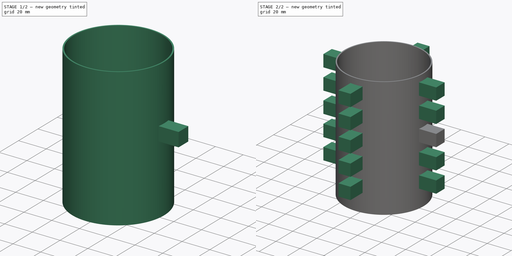
[diagram: build sequence overview — one tinted view per stage of 2, left to right]
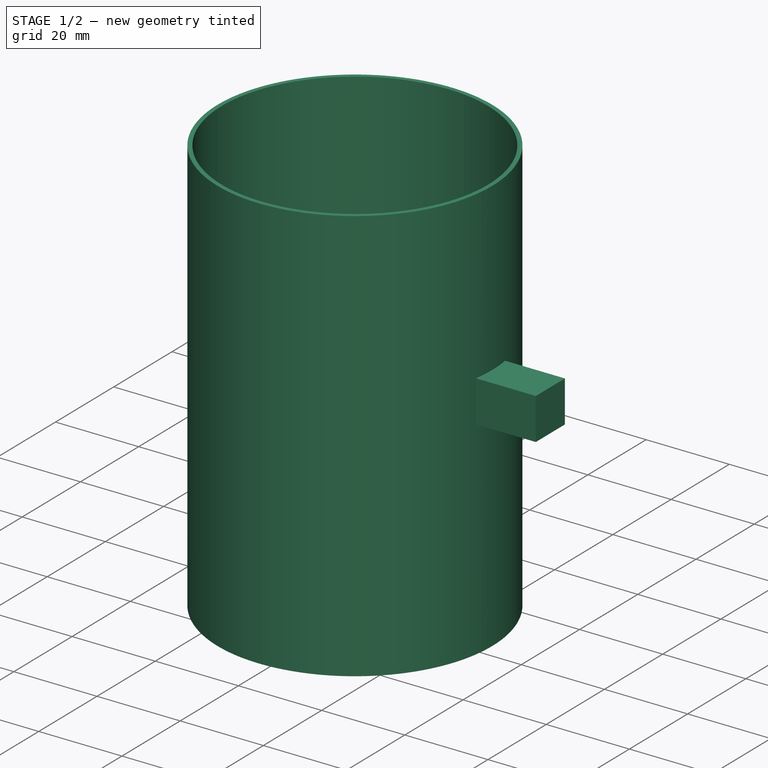
[diagram: stage 1 of 2 — iso view after this stage's code; geometry added in this stage tinted green]
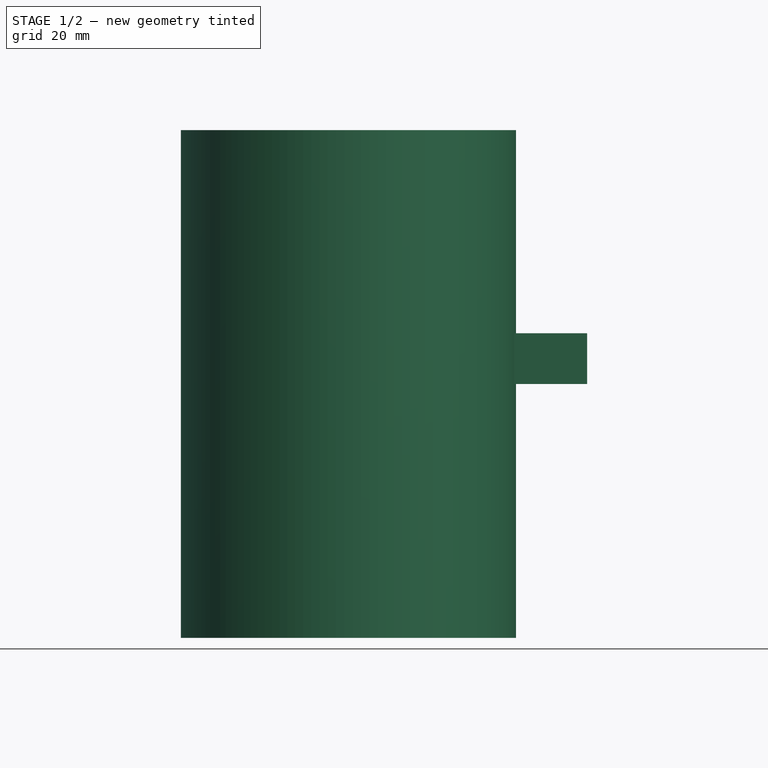
[diagram: stage 1 of 2 — front view after this stage's code; geometry added in this stage tinted green]
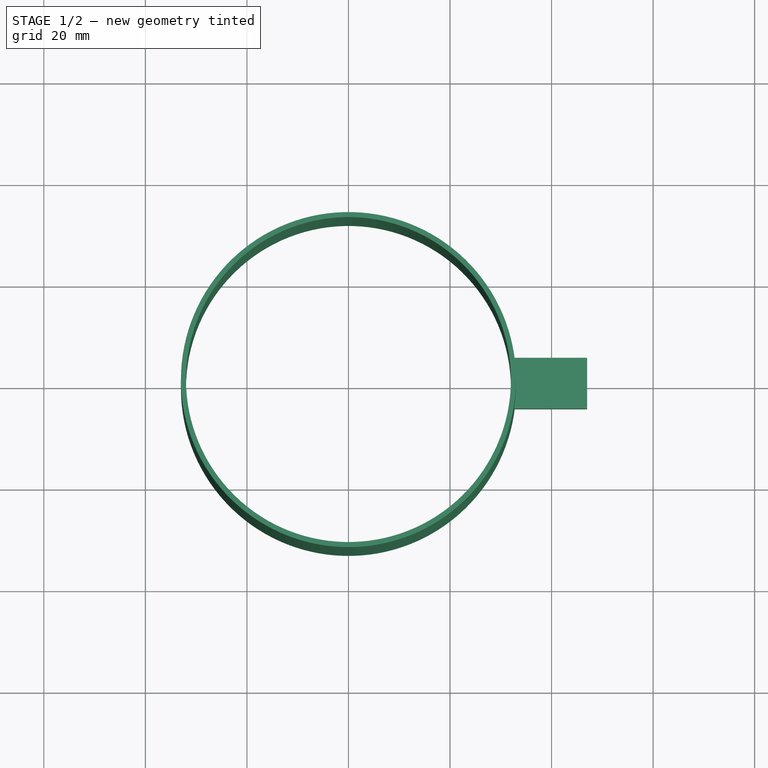
[diagram: stage 1 of 2 — top view after this stage's code; geometry added in this stage tinted green]
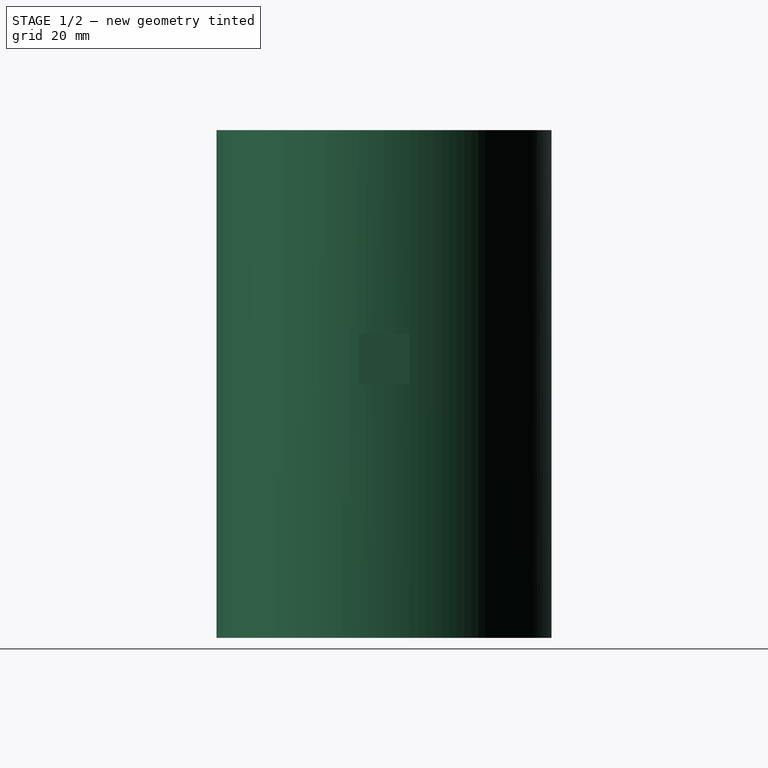
[diagram: stage 1 of 2 — right view after this stage's code; geometry added in this stage tinted green]
FCSTD DOCUMENT  (FreeCAD 0.17R13541 (Git))
Label: coque_legere
License: All rights reserved
LicenseURL: http://en.wikipedia.org/wiki/All_rights_reserved
objects: Sketcher::SketchObject×2, PartDesign::Pad×2, PartDesign::LinearPattern×2, Spreadsheet::Sheet×1, PartDesign::PolarPattern×1, PartDesign::MultiTransform×1, PartDesign::Body×1
note: 11 computed .brp shape members not serialized (recipe doc carries the construction recipe); baked Part::Feature solids carry a one-line shape summary decoded from their .brp

FEATURE [Sketcher::SketchObject] Sketch
  MapMode = 5
  Support = -> [XY_Plane]
  expr: Constraints[5] = Spreadsheet.B2
  expr: Constraints[1] = Spreadsheet.B1
  sketch-geometry (4):
    g0: Circle CenterX=0 CenterY=0 CenterZ=0 NormalX=0 NormalY=0 NormalZ=1 AngleXU=0 Radius=33
    g1: Circle CenterX=0 CenterY=0 CenterZ=0 NormalX=0 NormalY=0 NormalZ=1 AngleXU=0 Radius=32
    g2: GeomPoint X=0 Y=32 Z=0
    g3: GeomPoint X=0 Y=33 Z=0
  constraints (8):
    c: Coincident(g0,g-1)
    c: Radius(g0) = 33
    c: Coincident(g1,g-1)
    c: PointOnObject(g2,g1)
    c: PointOnObject(g3,g0)
    c: Distance(g2,g3) = 1
    c: PointOnObject(g2,g-2)
    c: PointOnObject(g3,g-2)
FEATURE [Spreadsheet::Sheet] Spreadsheet
  cells = A1=diametre_support; B1==submarine#Spreadsheet.B3 * 2 + B2; D1=support_coque_longuer; E1=15; A2=epaisseur_anneau; B2=1; D2=support_coque_largeur; E2=10; A3=largeur_anneau; B3=100
FEATURE [PartDesign::Pad] Pad
  Length = 100
  Length2 = 100
  Midplane = true
  Profile = -> Sketch
  Type = 0
  expr: Length = Spreadsheet.B3
FEATURE [Sketcher::SketchObject] Sketch002
  ExternalGeometry = -> [Pad]
  MapMode = 5
  Support = -> [XY_Plane]
  expr: Constraints[11] = Spreadsheet.E2
  expr: Constraints[10] = Spreadsheet.E1
  sketch-geometry (4):
    g0: LineSegment StartX=32 StartY=5 StartZ=0 EndX=47 EndY=5 EndZ=0
    g1: LineSegment StartX=47 StartY=5 StartZ=0 EndX=47 EndY=-5 EndZ=0
    g2: LineSegment StartX=47 StartY=-5 StartZ=0 EndX=32 EndY=-5 EndZ=0
    g3: LineSegment StartX=32 StartY=-5 StartZ=0 EndX=32 EndY=5 EndZ=0
  constraints (12):
    c: Horizontal(g0)
    c: Coincident(g0,g1)
    c: Vertical(g1)
    c: Coincident(g1,g2)
    c: Horizontal(g2)
    c: Coincident(g2,g3)
    c: Coincident(g3,g0)
    c: Vertical(g3)
    c: Symmetric(g0,g1,g-1)
    c: Tangent(g3,g-4)
    c: DistanceX(g0,g0) = 15
    c: DistanceY(g1,g1) = 10
FEATURE [PartDesign::Pad] Pad001
  BaseFeature = -> Pad
  Length = 10
  Length2 = 100
  Profile = -> Sketch002
  Type = 0
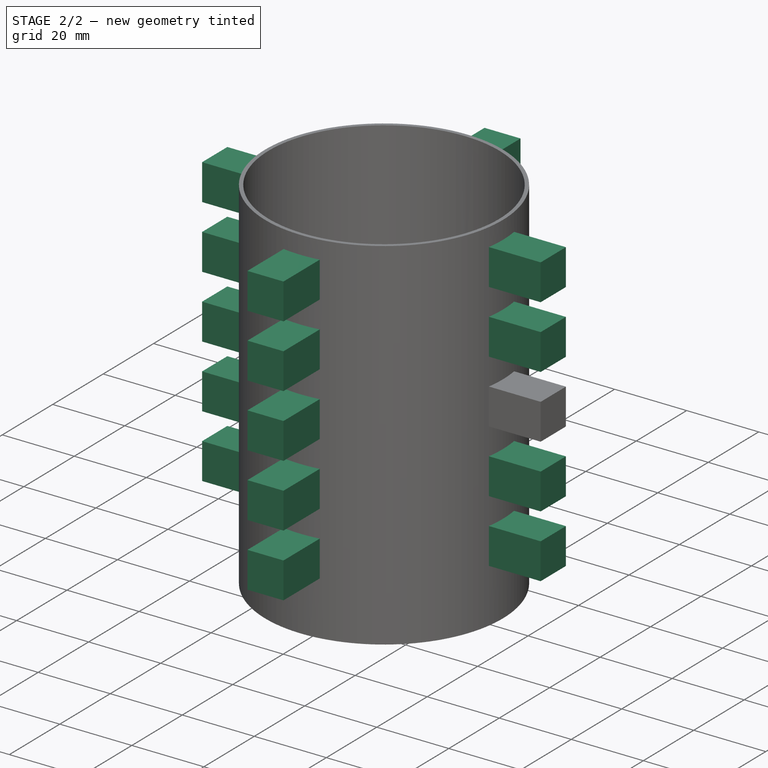
[diagram: stage 2 of 2 — iso view after this stage's code; geometry added in this stage tinted green]
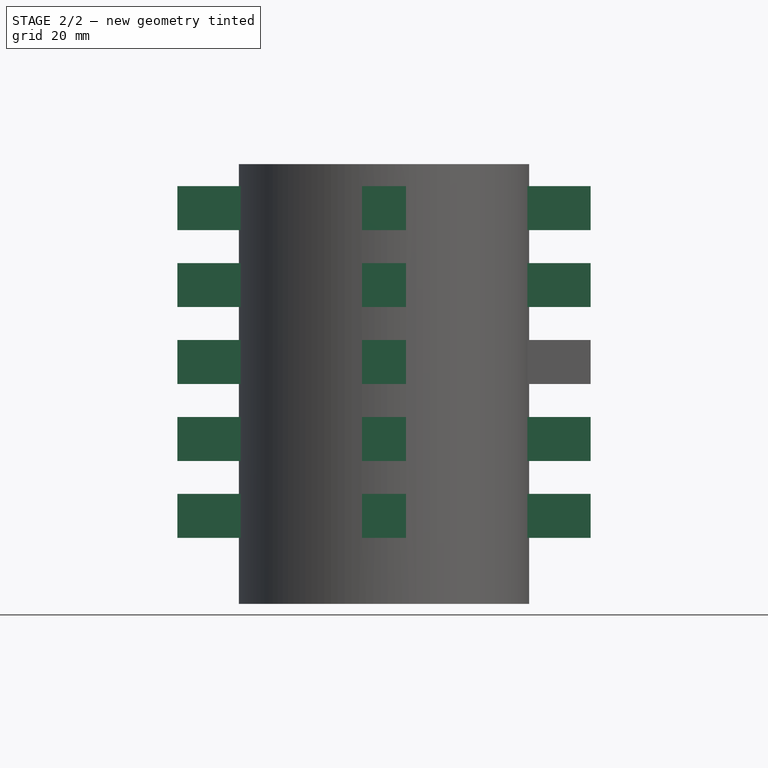
[diagram: stage 2 of 2 — front view after this stage's code; geometry added in this stage tinted green]
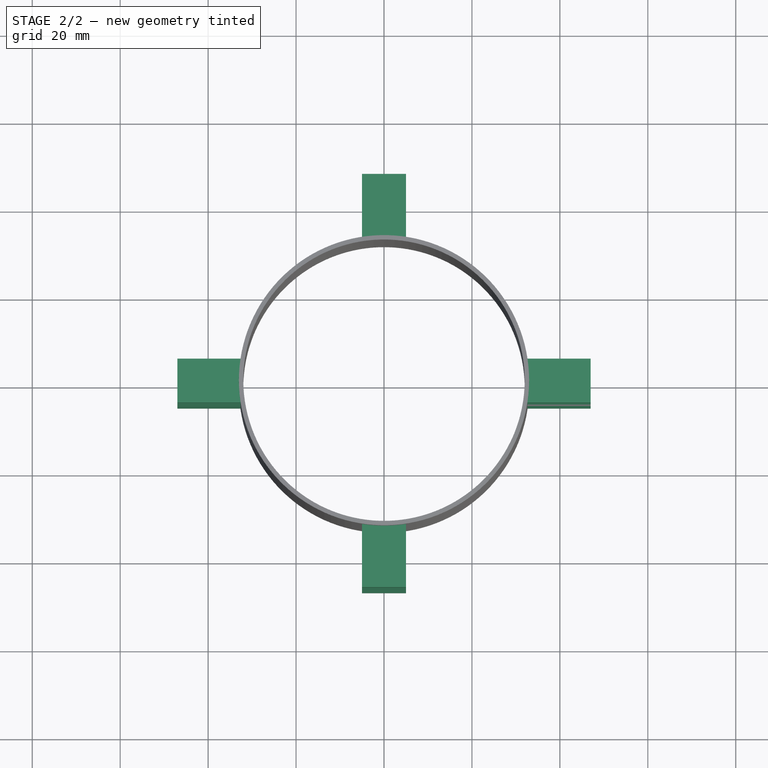
[diagram: stage 2 of 2 — top view after this stage's code; geometry added in this stage tinted green]
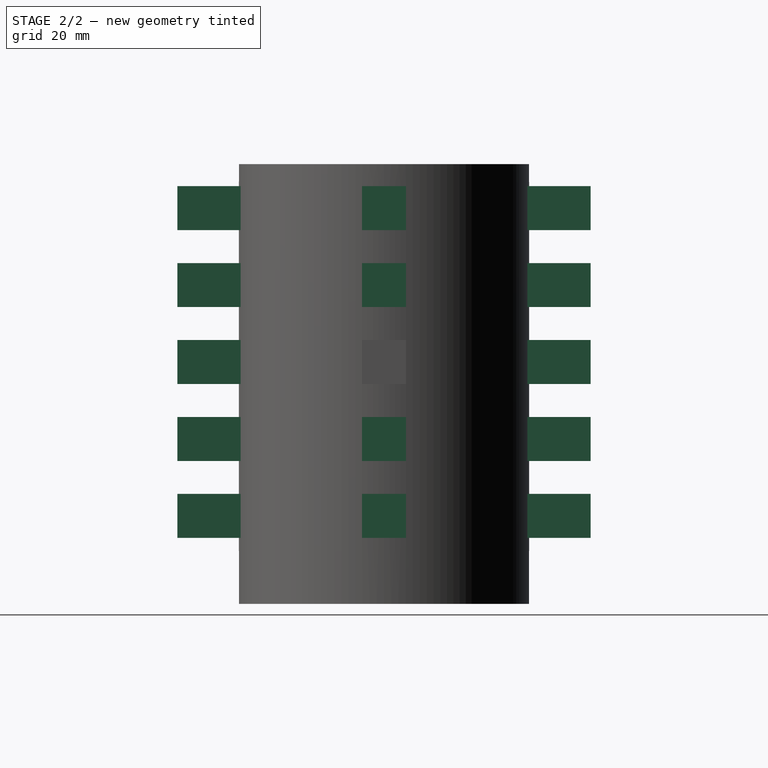
[diagram: stage 2 of 2 — right view after this stage's code; geometry added in this stage tinted green]
FEATURE [PartDesign::LinearPattern] LinearPattern
  Direction = -> Sketch002 [N_Axis]
  Length = 35
  Occurrences = 3
  expr: Length = Spreadsheet.B3 / 2 - Spreadsheet.E1
FEATURE [PartDesign::PolarPattern] PolarPattern
  Angle = 360
  Axis = -> Sketch002 [N_Axis]
  Occurrences = 4
FEATURE [PartDesign::LinearPattern] LinearPattern001
  Direction = -> Sketch002 [N_Axis]
  Length = 35
  Occurrences = 2
  Reversed = true
  expr: Length = Spreadsheet.B3 / 2 - Spreadsheet.E1
FEATURE [PartDesign::MultiTransform] MultiTransform
  BaseFeature = -> Pad001
  Originals = -> [Pad001]
  Transformations = -> [LinearPattern,PolarPattern,LinearPattern001]
FEATURE [PartDesign::Body] Body
  Group = -> [Sketch,Pad,Sketch002,Pad001,MultiTransform,LinearPattern,PolarPattern,LinearPattern001]
  Origin = -> Origin
  Tip = -> MultiTransform
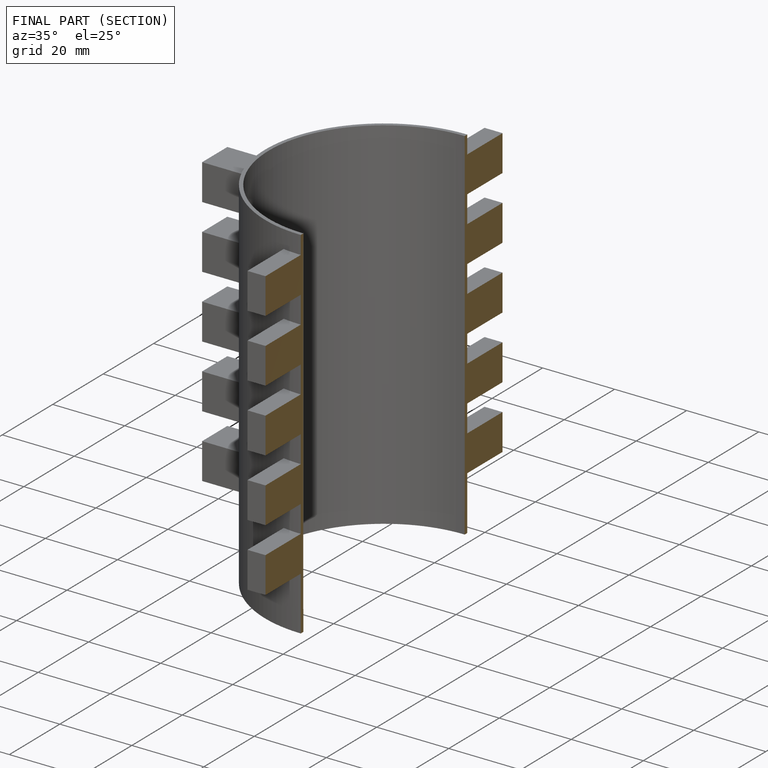
[diagram: finished part — half-section view (interior)]
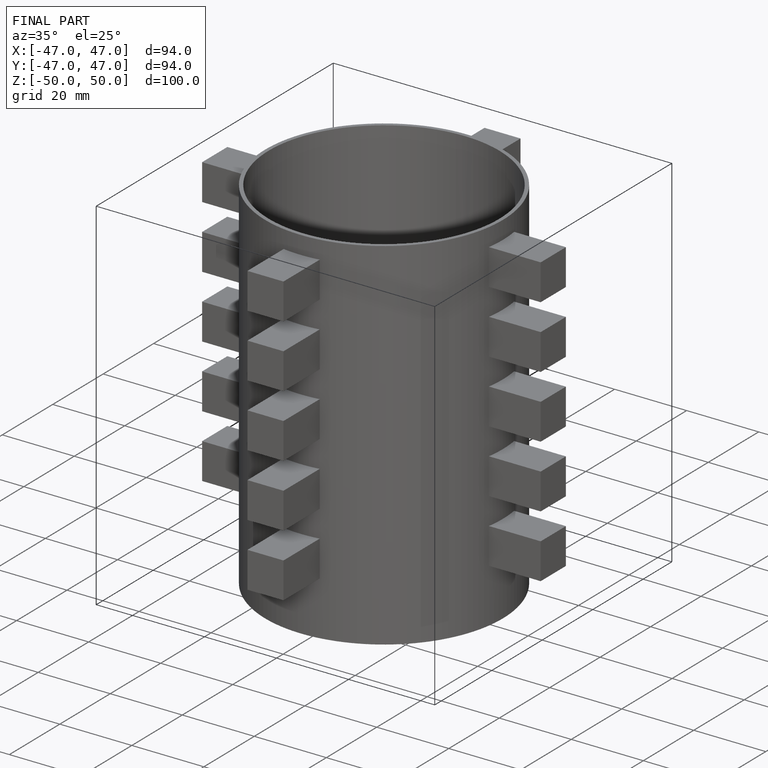
[diagram: finished part — iso view with bounding-box wireframe]
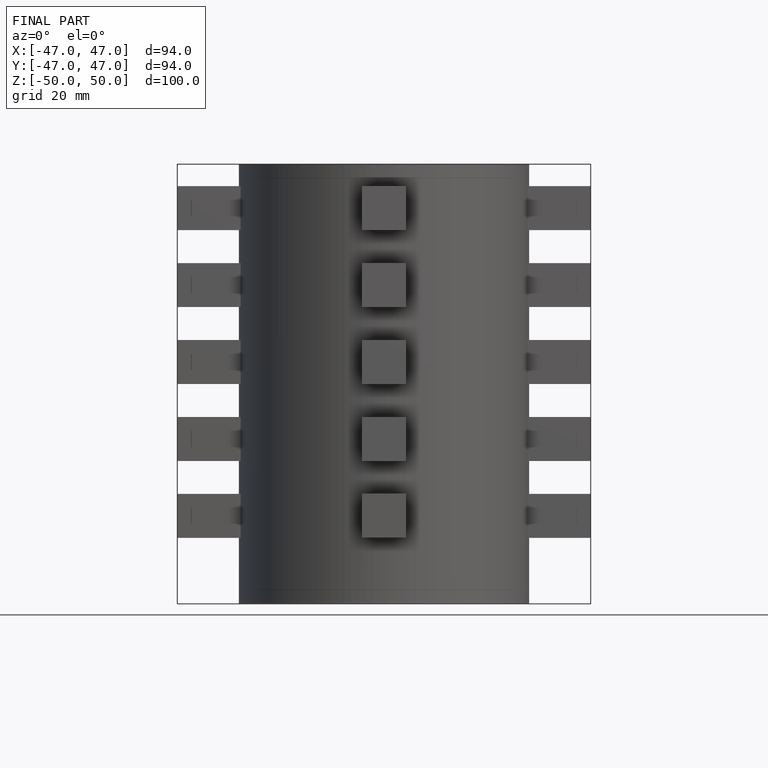
[diagram: finished part — front view with bounding-box wireframe]
